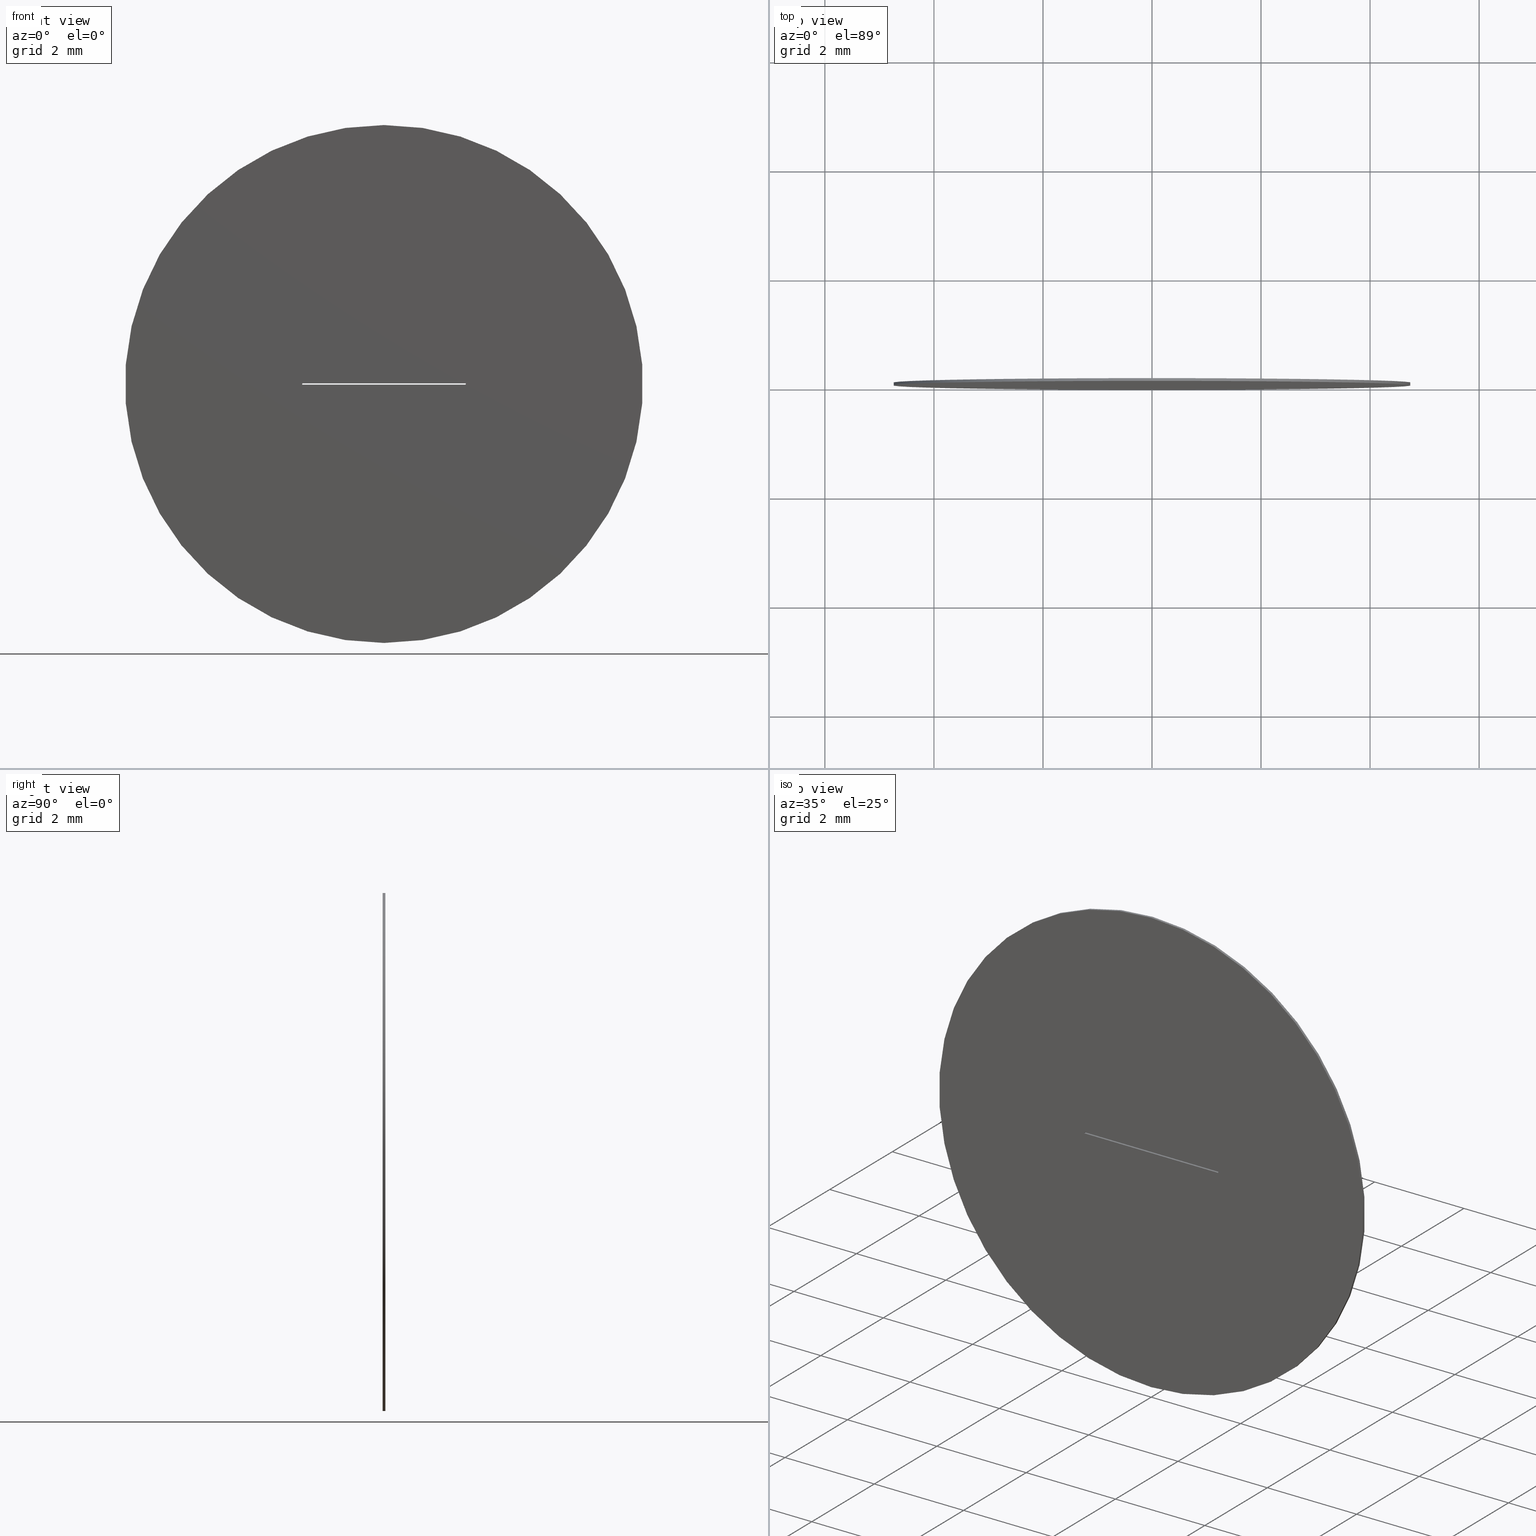
[diagram: canonical four-view strip — front | top / right | iso, engineering-drawing reading convention]
A machine part, canonical four-view strip (front | top / right | iso — engineering-drawing reading convention). The complete STEP part file that produces these views, byte-faithful:
ISO-10303-21;
HEADER;
FILE_DESCRIPTION (( 'STEP AP203' ),
    '1' );
FILE_NAME ('1.5.4.4-ZXG-9.5-25.STEP',
    '2024-05-29T06:48:30',
    ( '' ),
    ( '' ),
    'SwSTEP 2.0',
    'SolidWorks 2021',
    '' );
FILE_SCHEMA (( 'CONFIG_CONTROL_DESIGN' ));
ENDSEC;

DATA;
#1 = DIRECTION ( 'NONE',  ( 0.000000000000000000, 0.000000000000000000, 1.000000000000000000 ) ) ;
#2 = ADVANCED_FACE ( 'NONE', ( #111 ), #188, .T. ) ;
#3 = DIRECTION ( 'NONE',  ( -1.000000000000000000, -0.000000000000000000, -0.000000000000000000 ) ) ;
#4 = AXIS2_PLACEMENT_3D ( 'NONE', #74, #72, #144 ) ;
#5 = PERSON_AND_ORGANIZATION_ROLE ( 'creator' ) ;
#6 = LINE ( 'NONE', #195, #282 ) ;
#7 = LINE ( 'NONE', #170, #304 ) ;
#8 = EDGE_CURVE ( 'NONE', #302, #34, #288, .T. ) ;
#9 = CALENDAR_DATE ( 2024, 29, 5 ) ;
#10 = ADVANCED_FACE ( 'NONE', ( #142 ), #160, .T. ) ;
#11 = AXIS2_PLACEMENT_3D ( 'NONE', #123, #226, #29 ) ;
#12 = ORIENTED_EDGE ( 'NONE', *, *, #8, .F. ) ;
#13 = ORIENTED_EDGE ( 'NONE', *, *, #203, .F. ) ;
#14 = VERTEX_POINT ( 'NONE', #190 ) ;
#15 = DIRECTION ( 'NONE',  ( -1.000000000000000000, -0.000000000000000000, -0.000000000000000000 ) ) ;
#16 = APPROVAL_STATUS ( 'not_yet_approved' ) ;
#17 = DIRECTION ( 'NONE',  ( 1.000000000000000000, 0.000000000000000000, 0.000000000000000000 ) ) ;
#18 = COORDINATED_UNIVERSAL_TIME_OFFSET ( 8, 0, .AHEAD. ) ;
#19 = PERSON ( 'δָ��', 'δָ��', 'δָ��', ('δָ��'), ('δָ��'), ('δָ��') ) ;
#20 = CARTESIAN_POINT ( 'NONE',  ( -1.499999999999999556, 0.05000000000000000278, 0.01250000000000000243 ) ) ;
#21 = VECTOR ( 'NONE', #163, 1000.000000000000000 ) ;
#22 = COORDINATED_UNIVERSAL_TIME_OFFSET ( 8, 0, .AHEAD. ) ;
#23 = CARTESIAN_POINT ( 'NONE',  ( 0.000000000000000000, 0.05000000000000000278, 0.000000000000000000 ) ) ;
#24 = CARTESIAN_POINT ( 'NONE',  ( 1.500000000000000444, 0.05000000000000000278, -0.01249999999999999896 ) ) ;
#25 = CARTESIAN_POINT ( 'NONE',  ( 0.000000000000000000, 0.000000000000000000, -4.750000000000000000 ) ) ;
#26 = VECTOR ( 'NONE', #275, 1000.000000000000000 ) ;
#27 = DIRECTION ( 'NONE',  ( -0.000000000000000000, -1.000000000000000000, -0.000000000000000000 ) ) ;
#28 = LINE ( 'NONE', #176, #200 ) ;
#29 = DIRECTION ( 'NONE',  ( 0.000000000000000000, 0.000000000000000000, 1.000000000000000000 ) ) ;
#30 = ORIENTED_EDGE ( 'NONE', *, *, #128, .F. ) ;
#31 = LOCAL_TIME ( 14, 48, 30.00000000000000000, #145 ) ;
#32 = DIRECTION ( 'NONE',  ( 1.000000000000000000, 0.000000000000000000, 0.000000000000000000 ) ) ;
#33 = ADVANCED_FACE ( 'NONE', ( #240, #246 ), #68, .T. ) ;
#34 = VERTEX_POINT ( 'NONE', #40 ) ;
#35 = ORIENTED_EDGE ( 'NONE', *, *, #297, .T. ) ;
#36 = ORIENTED_EDGE ( 'NONE', *, *, #73, .F. ) ;
#37 =( GEOMETRIC_REPRESENTATION_CONTEXT ( 3 ) GLOBAL_UNCERTAINTY_ASSIGNED_CONTEXT ( ( #276 ) ) GLOBAL_UNIT_ASSIGNED_CONTEXT ( ( #252, #100, #124 ) ) REPRESENTATION_CONTEXT ( 'NONE', 'WORKASPACE' ) );
#38 = EDGE_LOOP ( 'NONE', ( #30, #13, #204, #126 ) ) ;
#39 = PLANE ( 'NONE',  #81 ) ;
#40 = CARTESIAN_POINT ( 'NONE',  ( -1.499999999999999556, 0.05000000000000000278, -0.01249999999999999896 ) ) ;
#41 = APPROVAL ( #16, 'δָ��' ) ;
#42 = PLANE ( 'NONE',  #125 ) ;
#43 = DIRECTION ( 'NONE',  ( 1.000000000000000000, 0.000000000000000000, 0.000000000000000000 ) ) ;
#44 = PRODUCT_RELATED_PRODUCT_CATEGORY ( 'detail', '', ( #224 ) ) ;
#45 = CARTESIAN_POINT ( 'NONE',  ( -1.499999999999999556, 0.05000000000000000278, -0.01249999999999999896 ) ) ;
#46 = DATE_AND_TIME ( #191, #300 ) ;
#47 = LINE ( 'NONE', #294, #113 ) ;
#48 = DIRECTION ( 'NONE',  ( -0.000000000000000000, -1.000000000000000000, -0.000000000000000000 ) ) ;
#49 = LINE ( 'NONE', #95, #26 ) ;
#50 = AXIS2_PLACEMENT_3D ( 'NONE', #20, #211, #137 ) ;
#51 = CC_DESIGN_PERSON_AND_ORGANIZATION_ASSIGNMENT ( #208, #182, ( #224 ) ) ;
#52 = PRODUCT_DEFINITION_SHAPE ( 'NONE', 'NONE',  #225 ) ;
#53 = ORIENTED_EDGE ( 'NONE', *, *, #301, .F. ) ;
#54 = CARTESIAN_POINT ( 'NONE',  ( -1.499999999999999556, 0.05000000000000000278, 0.01250000000000000243 ) ) ;
#55 = ADVANCED_FACE ( 'NONE', ( #270 ), #39, .T. ) ;
#56 = VECTOR ( 'NONE', #15, 1000.000000000000000 ) ;
#57 = ORIENTED_EDGE ( 'NONE', *, *, #283, .F. ) ;
#58 = EDGE_LOOP ( 'NONE', ( #201, #155 ) ) ;
#59 = ADVANCED_FACE ( 'NONE', ( #116, #212 ), #139, .F. ) ;
#60 = LOCAL_TIME ( 14, 48, 30.00000000000000000, #79 ) ;
#61 = APPROVAL_ROLE ( '' ) ;
#62 = ORIENTED_EDGE ( 'NONE', *, *, #175, .T. ) ;
#63 = DIRECTION ( 'NONE',  ( 0.000000000000000000, 1.000000000000000000, 0.000000000000000000 ) ) ;
#64 = APPROVAL_STATUS ( 'not_yet_approved' ) ;
#65 = DIRECTION ( 'NONE',  ( 0.000000000000000000, 0.000000000000000000, 1.000000000000000000 ) ) ;
#66 = PERSON_AND_ORGANIZATION_ROLE ( 'design_supplier' ) ;
#67 = CARTESIAN_POINT ( 'NONE',  ( -1.499999999999999556, 0.05000000000000000278, -0.01249999999999999896 ) ) ;
#68 = PLANE ( 'NONE',  #210 ) ;
#69 = PERSON_AND_ORGANIZATION ( #19, #222 ) ;
#70 = AXIS2_PLACEMENT_3D ( 'NONE', #178, #232, #32 ) ;
#71 = PERSON_AND_ORGANIZATION ( #19, #222 ) ;
#72 = DIRECTION ( 'NONE',  ( -0.000000000000000000, -1.000000000000000000, -0.000000000000000000 ) ) ;
#73 = EDGE_CURVE ( 'NONE', #281, #284, #235, .T. ) ;
#74 = CARTESIAN_POINT ( 'NONE',  ( 0.000000000000000000, 0.05000000000000000278, 0.000000000000000000 ) ) ;
#75 = LINE ( 'NONE', #54, #119 ) ;
#76 = ORIENTED_EDGE ( 'NONE', *, *, #73, .T. ) ;
#77 = AXIS2_PLACEMENT_3D ( 'NONE', #67, #43, #305 ) ;
#78 = CC_DESIGN_PERSON_AND_ORGANIZATION_ASSIGNMENT ( #214, #189, ( #225 ) ) ;
#79 = COORDINATED_UNIVERSAL_TIME_OFFSET ( 8, 0, .AHEAD. ) ;
#80 = ORIENTED_EDGE ( 'NONE', *, *, #122, .F. ) ;
#81 = AXIS2_PLACEMENT_3D ( 'NONE', #93, #136, #1 ) ;
#82 = ORIENTED_EDGE ( 'NONE', *, *, #283, .T. ) ;
#83 = ORIENTED_EDGE ( 'NONE', *, *, #253, .T. ) ;
#84 = VERTEX_POINT ( 'NONE', #310 ) ;
#85 = VECTOR ( 'NONE', #146, 1000.000000000000000 ) ;
#86 = EDGE_CURVE ( 'NONE', #255, #302, #269, .T. ) ;
#87 = DIRECTION ( 'NONE',  ( 0.000000000000000000, -0.000000000000000000, 1.000000000000000000 ) ) ;
#88 = DIRECTION ( 'NONE',  ( 1.000000000000000000, 0.000000000000000000, -0.000000000000000000 ) ) ;
#89 = APPROVAL_DATE_TIME ( #219, #101 ) ;
#90 = DIRECTION ( 'NONE',  ( -0.000000000000000000, -0.000000000000000000, -1.000000000000000000 ) ) ;
#91 = FACE_OUTER_BOUND ( 'NONE', #233, .T. ) ;
#92 = APPROVAL_ROLE ( '' ) ;
#93 = CARTESIAN_POINT ( 'NONE',  ( 1.500000000000000444, 0.05000000000000000278, -0.01249999999999999896 ) ) ;
#94 = CIRCLE ( 'NONE', #229, 4.750000000000000000 ) ;
#95 = CARTESIAN_POINT ( 'NONE',  ( -1.499999999999999556, 0.05000000000000000278, 0.01250000000000000243 ) ) ;
#96 = SECURITY_CLASSIFICATION_LEVEL ( 'unclassified' ) ;
#97 = CC_DESIGN_PERSON_AND_ORGANIZATION_ASSIGNMENT ( #69, #5, ( #215 ) ) ;
#98 = DIRECTION ( 'NONE',  ( -0.000000000000000000, -1.000000000000000000, -0.000000000000000000 ) ) ;
#99 = CARTESIAN_POINT ( 'NONE',  ( 1.500000000000000444, 0.000000000000000000, 0.01250000000000000243 ) ) ;
#100 =( NAMED_UNIT ( * ) PLANE_ANGLE_UNIT ( ) SI_UNIT ( $, .RADIAN. ) );
#101 = APPROVAL ( #257, 'δָ��' ) ;
#102 = ORIENTED_EDGE ( 'NONE', *, *, #301, .T. ) ;
#103 = EDGE_LOOP ( 'NONE', ( #12, #181, #53, #80 ) ) ;
#104 = CC_DESIGN_APPROVAL ( #41, ( #215 ) ) ;
#105 = ORIENTED_EDGE ( 'NONE', *, *, #143, .T. ) ;
#106 = ORIENTED_EDGE ( 'NONE', *, *, #297, .F. ) ;
#107 = ORIENTED_EDGE ( 'NONE', *, *, #128, .T. ) ;
#108 = CC_DESIGN_DATE_AND_TIME_ASSIGNMENT ( #311, #221, ( #225 ) ) ;
#109 = VECTOR ( 'NONE', #17, 1000.000000000000000 ) ;
#110 = CARTESIAN_POINT ( 'NONE',  ( 0.000000000000000000, 0.05000000000000000278, -4.750000000000000000 ) ) ;
#111 = FACE_OUTER_BOUND ( 'NONE', #177, .T. ) ;
#112 = LINE ( 'NONE', #307, #227 ) ;
#113 = VECTOR ( 'NONE', #171, 1000.000000000000000 ) ;
#114 = ADVANCED_FACE ( 'NONE', ( #216 ), #42, .T. ) ;
#115 = DIRECTION ( 'NONE',  ( 0.000000000000000000, 1.000000000000000000, 0.000000000000000000 ) ) ;
#116 = FACE_OUTER_BOUND ( 'NONE', #206, .T. ) ;
#117 = CALENDAR_DATE ( 2024, 29, 5 ) ;
#118 = ADVANCED_FACE ( 'NONE', ( #91 ), #287, .T. ) ;
#119 = VECTOR ( 'NONE', #278, 1000.000000000000000 ) ;
#120 = LINE ( 'NONE', #223, #151 ) ;
#121 = CARTESIAN_POINT ( 'NONE',  ( -1.499999999999999556, 0.000000000000000000, 0.01250000000000000243 ) ) ;
#122 = EDGE_CURVE ( 'NONE', #34, #84, #271, .T. ) ;
#123 = CARTESIAN_POINT ( 'NONE',  ( 0.000000000000000000, 0.000000000000000000, 0.000000000000000000 ) ) ;
#124 =( NAMED_UNIT ( * ) SI_UNIT ( $, .STERADIAN. ) SOLID_ANGLE_UNIT ( ) );
#125 = AXIS2_PLACEMENT_3D ( 'NONE', #306, #65, #88 ) ;
#126 = ORIENTED_EDGE ( 'NONE', *, *, #274, .T. ) ;
#127 = ORIENTED_EDGE ( 'NONE', *, *, #192, .T. ) ;
#128 = EDGE_CURVE ( 'NONE', #284, #14, #112, .T. ) ;
#129 = ORIENTED_EDGE ( 'NONE', *, *, #237, .F. ) ;
#130 = CIRCLE ( 'NONE', #184, 4.750000000000000000 ) ;
#131 = ORIENTED_EDGE ( 'NONE', *, *, #203, .T. ) ;
#132 = EDGE_CURVE ( 'NONE', #286, #183, #94, .T. ) ;
#133 = ORIENTED_EDGE ( 'NONE', *, *, #262, .F. ) ;
#134 = CARTESIAN_POINT ( 'NONE',  ( -1.499999999999999556, 0.05000000000000000278, -0.01249999999999999896 ) ) ;
#135 = AXIS2_PLACEMENT_3D ( 'NONE', #291, #186, #166 ) ;
#136 = DIRECTION ( 'NONE',  ( -1.000000000000000000, 0.000000000000000000, 0.000000000000000000 ) ) ;
#137 = DIRECTION ( 'NONE',  ( -1.000000000000000000, 0.000000000000000000, -0.000000000000000000 ) ) ;
#138 = COORDINATED_UNIVERSAL_TIME_OFFSET ( 8, 0, .AHEAD. ) ;
#139 = PLANE ( 'NONE',  #263 ) ;
#140 = DATE_AND_TIME ( #117, #308 ) ;
#141 = APPLICATION_CONTEXT ( 'configuration controlled 3d designs of mechanical parts and assemblies' ) ;
#142 = FACE_OUTER_BOUND ( 'NONE', #299, .T. ) ;
#143 = EDGE_CURVE ( 'NONE', #286, #228, #266, .T. ) ;
#144 = DIRECTION ( 'NONE',  ( 0.000000000000000000, 0.000000000000000000, -1.000000000000000000 ) ) ;
#145 = COORDINATED_UNIVERSAL_TIME_OFFSET ( 8, 0, .AHEAD. ) ;
#146 = DIRECTION ( 'NONE',  ( -0.000000000000000000, -1.000000000000000000, -0.000000000000000000 ) ) ;
#147 = VECTOR ( 'NONE', #238, 1000.000000000000000 ) ;
#148 = DIRECTION ( 'NONE',  ( 0.000000000000000000, 0.000000000000000000, 1.000000000000000000 ) ) ;
#149 = DIRECTION ( 'NONE',  ( -0.000000000000000000, -1.000000000000000000, -0.000000000000000000 ) ) ;
#150 = ORIENTED_EDGE ( 'NONE', *, *, #192, .F. ) ;
#151 = VECTOR ( 'NONE', #98, 1000.000000000000000 ) ;
#152 = ADVANCED_BREP_SHAPE_REPRESENTATION ( '1.5.4.4-ZXG-9.5-25', ( #242, #70 ), #37 ) ;
#153 = EDGE_LOOP ( 'NONE', ( #129, #180, #105, #82 ) ) ;
#154 = ORIENTED_EDGE ( 'NONE', *, *, #274, .F. ) ;
#155 = ORIENTED_EDGE ( 'NONE', *, *, #262, .T. ) ;
#156 = LOCAL_TIME ( 14, 48, 30.00000000000000000, #138 ) ;
#157 = EDGE_CURVE ( 'NONE', #14, #158, #28, .T. ) ;
#158 = VERTEX_POINT ( 'NONE', #295 ) ;
#159 = DIRECTION ( 'NONE',  ( 0.000000000000000000, 0.000000000000000000, 1.000000000000000000 ) ) ;
#160 = PLANE ( 'NONE',  #50 ) ;
#161 = DATE_TIME_ROLE ( 'classification_date' ) ;
#162 = CC_DESIGN_APPROVAL ( #293, ( #194 ) ) ;
#163 = DIRECTION ( 'NONE',  ( 0.000000000000000000, 0.000000000000000000, 1.000000000000000000 ) ) ;
#164 = CC_DESIGN_DATE_AND_TIME_ASSIGNMENT ( #196, #161, ( #194 ) ) ;
#165 = APPROVAL_ROLE ( '' ) ;
#166 = DIRECTION ( 'NONE',  ( 0.000000000000000000, 0.000000000000000000, -1.000000000000000000 ) ) ;
#167 = CALENDAR_DATE ( 2024, 29, 5 ) ;
#168 = DIRECTION ( 'NONE',  ( 0.000000000000000000, 1.000000000000000000, 0.000000000000000000 ) ) ;
#169 = PERSON_AND_ORGANIZATION ( #19, #222 ) ;
#170 = CARTESIAN_POINT ( 'NONE',  ( 5.817072295949927426E-16, 0.05000000000000000278, 4.750000000000000000 ) ) ;
#171 = DIRECTION ( 'NONE',  ( 0.000000000000000000, 0.000000000000000000, 1.000000000000000000 ) ) ;
#172 = CIRCLE ( 'NONE', #179, 4.750000000000000000 ) ;
#173 = DIRECTION ( 'NONE',  ( 0.000000000000000000, 0.000000000000000000, 1.000000000000000000 ) ) ;
#174 = EDGE_LOOP ( 'NONE', ( #107, #230, #127, #76 ) ) ;
#175 = EDGE_CURVE ( 'NONE', #84, #281, #49, .T. ) ;
#176 = CARTESIAN_POINT ( 'NONE',  ( -1.499999999999999556, 0.000000000000000000, -0.01249999999999999896 ) ) ;
#177 = EDGE_LOOP ( 'NONE', ( #150, #261, #280, #62 ) ) ;
#178 = CARTESIAN_POINT ( 'NONE',  ( 0.000000000000000000, 0.000000000000000000, 0.000000000000000000 ) ) ;
#179 = AXIS2_PLACEMENT_3D ( 'NONE', #296, #168, #173 ) ;
#180 = ORIENTED_EDGE ( 'NONE', *, *, #132, .F. ) ;
#181 = ORIENTED_EDGE ( 'NONE', *, *, #86, .F. ) ;
#182 = PERSON_AND_ORGANIZATION_ROLE ( 'design_owner' ) ;
#183 = VERTEX_POINT ( 'NONE', #254 ) ;
#184 = AXIS2_PLACEMENT_3D ( 'NONE', #197, #277, #148 ) ;
#185 = CARTESIAN_POINT ( 'NONE',  ( 1.500000000000000444, 0.05000000000000000278, -0.01249999999999999896 ) ) ;
#186 = DIRECTION ( 'NONE',  ( -0.000000000000000000, -1.000000000000000000, -0.000000000000000000 ) ) ;
#187 = APPROVAL_PERSON_ORGANIZATION ( #71, #41, #165 ) ;
#188 = PLANE ( 'NONE',  #77 ) ;
#189 = PERSON_AND_ORGANIZATION_ROLE ( 'creator' ) ;
#190 = CARTESIAN_POINT ( 'NONE',  ( 1.500000000000000444, 0.000000000000000000, -0.01249999999999999896 ) ) ;
#191 = CALENDAR_DATE ( 2024, 29, 5 ) ;
#192 = EDGE_CURVE ( 'NONE', #158, #281, #47, .T. ) ;
#193 = LINE ( 'NONE', #251, #205 ) ;
#194 = SECURITY_CLASSIFICATION ( '', '', #96 ) ;
#195 = CARTESIAN_POINT ( 'NONE',  ( 1.500000000000000444, 0.05000000000000000278, 0.01250000000000000243 ) ) ;
#196 = DATE_AND_TIME ( #167, #156 ) ;
#197 = CARTESIAN_POINT ( 'NONE',  ( 0.000000000000000000, 0.05000000000000000278, 0.000000000000000000 ) ) ;
#198 = CC_DESIGN_PERSON_AND_ORGANIZATION_ASSIGNMENT ( #309, #66, ( #215 ) ) ;
#199 = CARTESIAN_POINT ( 'NONE',  ( 0.000000000000000000, 0.05000000000000000278, -4.750000000000000000 ) ) ;
#200 = VECTOR ( 'NONE', #3, 1000.000000000000000 ) ;
#201 = ORIENTED_EDGE ( 'NONE', *, *, #132, .T. ) ;
#202 = MECHANICAL_CONTEXT ( 'NONE', #258, 'mechanical' ) ;
#203 = EDGE_CURVE ( 'NONE', #255, #284, #6, .T. ) ;
#204 = ORIENTED_EDGE ( 'NONE', *, *, #86, .T. ) ;
#205 = VECTOR ( 'NONE', #27, 1000.000000000000000 ) ;
#206 = EDGE_LOOP ( 'NONE', ( #57, #106 ) ) ;
#207 = ORIENTED_EDGE ( 'NONE', *, *, #143, .F. ) ;
#208 = PERSON_AND_ORGANIZATION ( #19, #222 ) ;
#209 = ORIENTED_EDGE ( 'NONE', *, *, #175, .F. ) ;
#210 = AXIS2_PLACEMENT_3D ( 'NONE', #290, #63, #267 ) ;
#211 = DIRECTION ( 'NONE',  ( 0.000000000000000000, 0.000000000000000000, -1.000000000000000000 ) ) ;
#212 = FACE_BOUND ( 'NONE', #174, .T. ) ;
#213 = CARTESIAN_POINT ( 'NONE',  ( -1.499999999999999556, 0.000000000000000000, 0.01250000000000000243 ) ) ;
#214 = PERSON_AND_ORGANIZATION ( #19, #222 ) ;
#215 = PRODUCT_DEFINITION_FORMATION_WITH_SPECIFIED_SOURCE ( '�κ�', '', #224, .NOT_KNOWN. ) ;
#216 = FACE_OUTER_BOUND ( 'NONE', #303, .T. ) ;
#217 = CALENDAR_DATE ( 2024, 29, 5 ) ;
#218 = DIRECTION ( 'NONE',  ( 0.000000000000000000, 1.000000000000000000, 0.000000000000000000 ) ) ;
#219 = DATE_AND_TIME ( #9, #60 ) ;
#220 = APPLICATION_PROTOCOL_DEFINITION ( 'international standard', 'config_control_design', 1994, #258 ) ;
#221 = DATE_TIME_ROLE ( 'creation_date' ) ;
#222 = ORGANIZATION ( 'δָ��', 'δָ��', '' ) ;
#223 = CARTESIAN_POINT ( 'NONE',  ( -1.499999999999999556, 0.05000000000000000278, -0.01249999999999999896 ) ) ;
#224 = PRODUCT ( '1.5.4.4-ZXG-9.5-25', '1.5.4.4-ZXG-9.5-25', '', ( #202 ) ) ;
#225 = PRODUCT_DEFINITION ( 'δ֪', '', #215, #248 ) ;
#226 = DIRECTION ( 'NONE',  ( 0.000000000000000000, 1.000000000000000000, 0.000000000000000000 ) ) ;
#227 = VECTOR ( 'NONE', #90, 1000.000000000000000 ) ;
#228 = VERTEX_POINT ( 'NONE', #25 ) ;
#229 = AXIS2_PLACEMENT_3D ( 'NONE', #23, #218, #159 ) ;
#230 = ORIENTED_EDGE ( 'NONE', *, *, #157, .T. ) ;
#231 = ADVANCED_FACE ( 'NONE', ( #298 ), #249, .T. ) ;
#232 = DIRECTION ( 'NONE',  ( 0.000000000000000000, 0.000000000000000000, 1.000000000000000000 ) ) ;
#233 = EDGE_LOOP ( 'NONE', ( #133, #264, #35, #207 ) ) ;
#234 = VERTEX_POINT ( 'NONE', #247 ) ;
#235 = LINE ( 'NONE', #213, #109 ) ;
#236 = CIRCLE ( 'NONE', #11, 4.750000000000000000 ) ;
#237 = EDGE_CURVE ( 'NONE', #183, #234, #7, .T. ) ;
#238 = DIRECTION ( 'NONE',  ( -0.000000000000000000, -0.000000000000000000, -1.000000000000000000 ) ) ;
#239 = PERSON_AND_ORGANIZATION_ROLE ( 'classification_officer' ) ;
#240 = FACE_OUTER_BOUND ( 'NONE', #58, .T. ) ;
#241 = APPROVAL_DATE_TIME ( #46, #293 ) ;
#242 = MANIFOLD_SOLID_BREP ( '͹̨-����1', #289 ) ;
#243 = CARTESIAN_POINT ( 'NONE',  ( 0.000000000000000000, 0.000000000000000000, 0.000000000000000000 ) ) ;
#244 = APPROVAL_DATE_TIME ( #140, #41 ) ;
#245 = CC_DESIGN_SECURITY_CLASSIFICATION ( #194, ( #215 ) ) ;
#246 = FACE_BOUND ( 'NONE', #103, .T. ) ;
#247 = CARTESIAN_POINT ( 'NONE',  ( 5.817072295949927426E-16, 0.000000000000000000, 4.750000000000000000 ) ) ;
#248 = DESIGN_CONTEXT ( 'detailed design', #141, 'design' ) ;
#249 = CYLINDRICAL_SURFACE ( 'NONE', #4, 4.750000000000000000 ) ;
#250 = CC_DESIGN_PERSON_AND_ORGANIZATION_ASSIGNMENT ( #169, #239, ( #194 ) ) ;
#251 = CARTESIAN_POINT ( 'NONE',  ( 1.500000000000000444, 0.05000000000000000278, -0.01249999999999999896 ) ) ;
#252 =( LENGTH_UNIT ( ) NAMED_UNIT ( * ) SI_UNIT ( .MILLI., .METRE. ) );
#253 = EDGE_CURVE ( 'NONE', #34, #158, #120, .T. ) ;
#254 = CARTESIAN_POINT ( 'NONE',  ( 5.817072295949927426E-16, 0.05000000000000000278, 4.750000000000000000 ) ) ;
#255 = VERTEX_POINT ( 'NONE', #279 ) ;
#256 = CC_DESIGN_APPROVAL ( #101, ( #225 ) ) ;
#257 = APPROVAL_STATUS ( 'not_yet_approved' ) ;
#258 = APPLICATION_CONTEXT ( 'configuration controlled 3d designs of mechanical parts and assemblies' ) ;
#259 = PERSON_AND_ORGANIZATION ( #19, #222 ) ;
#260 = ORIENTED_EDGE ( 'NONE', *, *, #157, .F. ) ;
#261 = ORIENTED_EDGE ( 'NONE', *, *, #253, .F. ) ;
#262 = EDGE_CURVE ( 'NONE', #183, #286, #130, .T. ) ;
#263 = AXIS2_PLACEMENT_3D ( 'NONE', #243, #115, #87 ) ;
#264 = ORIENTED_EDGE ( 'NONE', *, *, #237, .T. ) ;
#265 = ORIENTED_EDGE ( 'NONE', *, *, #8, .T. ) ;
#266 = LINE ( 'NONE', #110, #85 ) ;
#267 = DIRECTION ( 'NONE',  ( 0.000000000000000000, -0.000000000000000000, 1.000000000000000000 ) ) ;
#268 = APPROVAL_PERSON_ORGANIZATION ( #292, #293, #92 ) ;
#269 = LINE ( 'NONE', #185, #147 ) ;
#270 = FACE_OUTER_BOUND ( 'NONE', #38, .T. ) ;
#271 = LINE ( 'NONE', #45, #21 ) ;
#272 = APPROVAL_PERSON_ORGANIZATION ( #259, #101, #61 ) ;
#273 = SHAPE_DEFINITION_REPRESENTATION ( #52, #152 ) ;
#274 = EDGE_CURVE ( 'NONE', #302, #14, #193, .T. ) ;
#275 = DIRECTION ( 'NONE',  ( -0.000000000000000000, -1.000000000000000000, -0.000000000000000000 ) ) ;
#276 = UNCERTAINTY_MEASURE_WITH_UNIT (LENGTH_MEASURE( 1.000000000000000082E-05 ), #252, 'distance_accuracy_value', 'NONE');
#277 = DIRECTION ( 'NONE',  ( 0.000000000000000000, 1.000000000000000000, 0.000000000000000000 ) ) ;
#278 = DIRECTION ( 'NONE',  ( 1.000000000000000000, 0.000000000000000000, 0.000000000000000000 ) ) ;
#279 = CARTESIAN_POINT ( 'NONE',  ( 1.500000000000000444, 0.05000000000000000278, 0.01250000000000000243 ) ) ;
#280 = ORIENTED_EDGE ( 'NONE', *, *, #122, .T. ) ;
#281 = VERTEX_POINT ( 'NONE', #121 ) ;
#282 = VECTOR ( 'NONE', #149, 1000.000000000000000 ) ;
#283 = EDGE_CURVE ( 'NONE', #228, #234, #236, .T. ) ;
#284 = VERTEX_POINT ( 'NONE', #99 ) ;
#285 = APPLICATION_PROTOCOL_DEFINITION ( 'international standard', 'config_control_design', 1994, #141 ) ;
#286 = VERTEX_POINT ( 'NONE', #199 ) ;
#287 = CYLINDRICAL_SURFACE ( 'NONE', #135, 4.750000000000000000 ) ;
#288 = LINE ( 'NONE', #134, #56 ) ;
#289 = CLOSED_SHELL ( 'NONE', ( #118, #33, #59, #231, #55, #114, #2, #10 ) ) ;
#290 = CARTESIAN_POINT ( 'NONE',  ( 0.000000000000000000, 0.05000000000000000278, 0.000000000000000000 ) ) ;
#291 = CARTESIAN_POINT ( 'NONE',  ( 0.000000000000000000, 0.05000000000000000278, 0.000000000000000000 ) ) ;
#292 = PERSON_AND_ORGANIZATION ( #19, #222 ) ;
#293 = APPROVAL ( #64, 'δָ��' ) ;
#294 = CARTESIAN_POINT ( 'NONE',  ( -1.499999999999999556, 0.000000000000000000, -0.01249999999999999896 ) ) ;
#295 = CARTESIAN_POINT ( 'NONE',  ( -1.499999999999999556, 0.000000000000000000, -0.01249999999999999896 ) ) ;
#296 = CARTESIAN_POINT ( 'NONE',  ( 0.000000000000000000, 0.000000000000000000, 0.000000000000000000 ) ) ;
#297 = EDGE_CURVE ( 'NONE', #234, #228, #172, .T. ) ;
#298 = FACE_OUTER_BOUND ( 'NONE', #153, .T. ) ;
#299 = EDGE_LOOP ( 'NONE', ( #36, #209, #102, #131 ) ) ;
#300 = LOCAL_TIME ( 14, 48, 30.00000000000000000, #18 ) ;
#301 = EDGE_CURVE ( 'NONE', #84, #255, #75, .T. ) ;
#302 = VERTEX_POINT ( 'NONE', #24 ) ;
#303 = EDGE_LOOP ( 'NONE', ( #260, #154, #265, #83 ) ) ;
#304 = VECTOR ( 'NONE', #48, 1000.000000000000000 ) ;
#305 = DIRECTION ( 'NONE',  ( 0.000000000000000000, 0.000000000000000000, -1.000000000000000000 ) ) ;
#306 = CARTESIAN_POINT ( 'NONE',  ( -1.499999999999999556, 0.05000000000000000278, -0.01249999999999999896 ) ) ;
#307 = CARTESIAN_POINT ( 'NONE',  ( 1.500000000000000444, 0.000000000000000000, -0.01249999999999999896 ) ) ;
#308 = LOCAL_TIME ( 14, 48, 30.00000000000000000, #22 ) ;
#309 = PERSON_AND_ORGANIZATION ( #19, #222 ) ;
#310 = CARTESIAN_POINT ( 'NONE',  ( -1.499999999999999556, 0.05000000000000000278, 0.01250000000000000243 ) ) ;
#311 = DATE_AND_TIME ( #217, #31 ) ;
ENDSEC;
END-ISO-10303-21;
